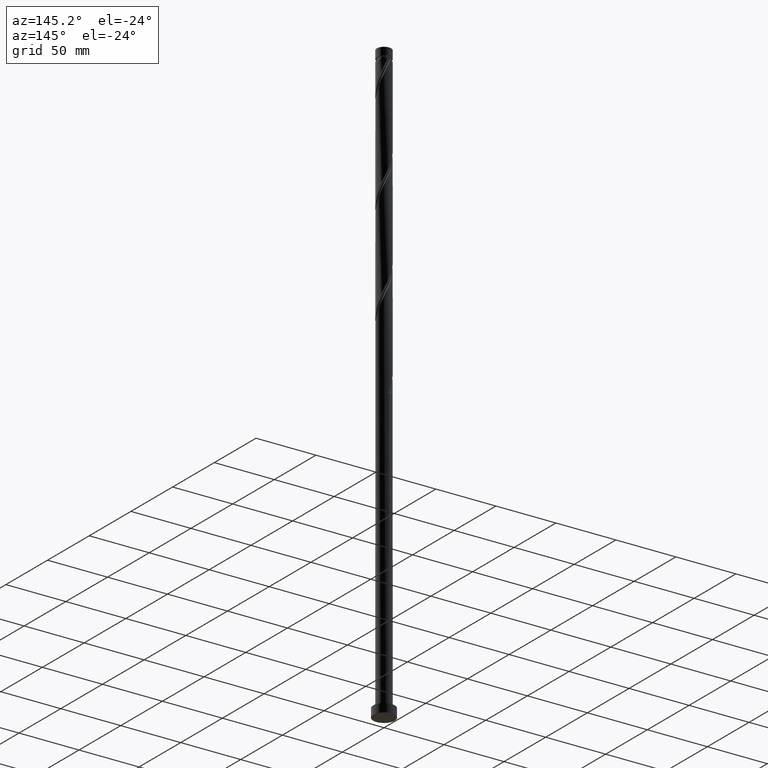
[diagram: clean part render]
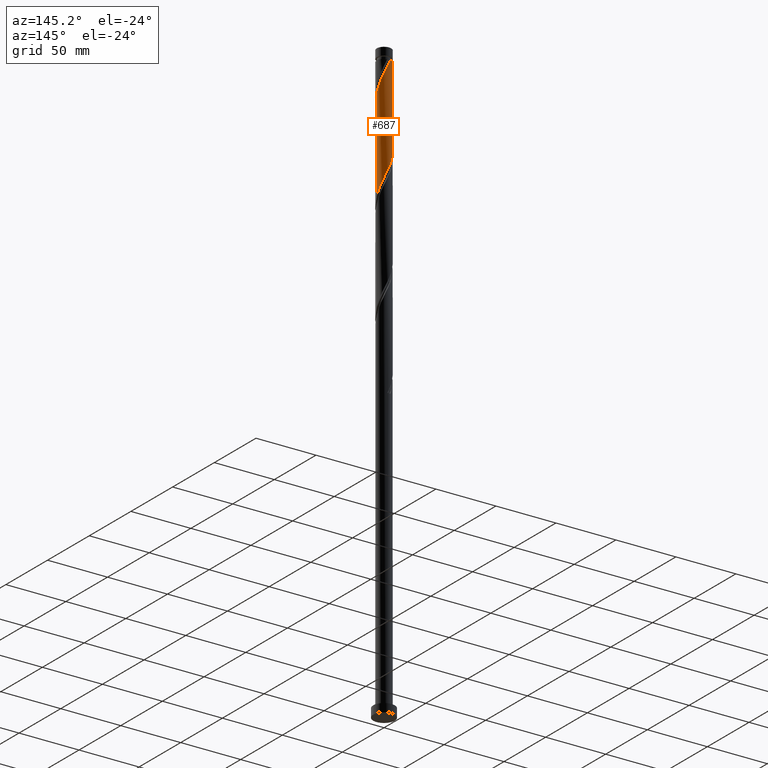
[diagram: same view with one face highlighted and labeled with its STEP entity id]
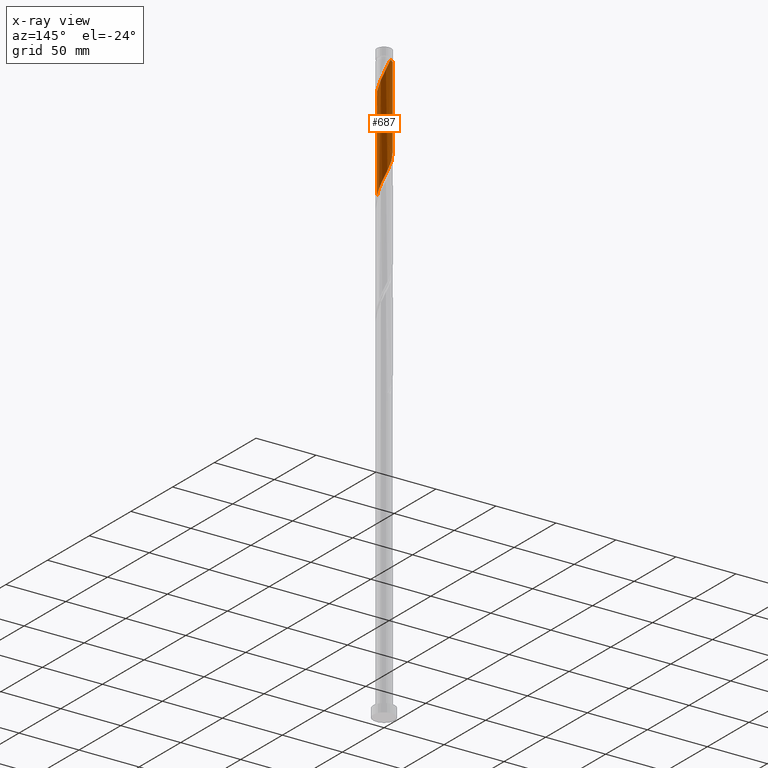
[diagram: x-ray of the same camera — body ghosted, the highlighted face saturated]
A machine part, auxiliary view. The second image highlights one B-rep face of the part: STEP entity #687.
The next image is the same camera in x-ray: the body ghosted, the highlighted face saturated — about 0% of this face is hidden behind the body in this view.
In plain terms, the highlighted cylindrical surface (edge-blend (fillet) strip) has radius 6 mm, axis along (-0, -0, -1).
Its self-contained STEP definition (entity closure, byte-faithful):
#4 = CARTESIAN_POINT ( 'NONE',  ( 5.999999999999996447, 0.5788788895739149787, 390.7129096916172557 ) ) ;
#23 = CARTESIAN_POINT ( 'NONE',  ( 2.273990787862928187, 5.552383803080857660, 483.1342326082042860 ) ) ;
#25 = EDGE_CURVE ( 'NONE', #1206, #496, #877, .T. ) ;
#34 = CARTESIAN_POINT ( 'NONE',  ( 3.313513036608686235, 5.002062710145124491, 480.5300659415375435 ) ) ;
#73 = ORIENTED_EDGE ( 'NONE', *, *, #1419, .F. ) ;
#147 = CARTESIAN_POINT ( 'NONE',  ( 2.318173932455211084, 5.534082545362432271, 405.0092326082041723 ) ) ;
#150 = CARTESIAN_POINT ( 'NONE',  ( -6.000000000000000888, 0.01195592024556735820, 431.0772426983504033 ) ) ;
#179 = CARTESIAN_POINT ( 'NONE',  ( 5.305762341528935444, 2.863233488642343616, 474.0196492748709716 ) ) ;
#203 = CARTESIAN_POINT ( 'NONE',  ( 6.000000000000010658, -2.050212936401257795E-17, 467.4565356302072701 ) ) ;
#213 = CARTESIAN_POINT ( 'NONE',  ( 6.000000000000000888, 7.347880794884120722E-16, 500.0000000000000000 ) ) ;
#259 =( BOUNDED_CURVE ( )  B_SPLINE_CURVE ( 2, ( #203, #664, #972, #497, #352, #341, #1349, #179, #1995, #1485, #530, #1804, #34, #1830, #23, #374, #1137, #1621, #676, #1327, #1970 ),
 .UNSPECIFIED., .F., .T. ) 
 B_SPLINE_CURVE_WITH_KNOTS ( ( 3, 2, 2, 2, 2, 2, 2, 2, 2, 2, 3 ),
 ( 0.6795286902180872612, 0.6796875000000000000, 0.6875000000000000000, 0.6953125000000000000, 0.7031250000000000000, 0.7109375000000000000, 0.7187500000000000000, 0.7265625000000000000, 0.7343750000000000000, 0.7421875000000000000, 0.7500000000000000000 ),
 .UNSPECIFIED. ) 
 CURVE ( )  GEOMETRIC_REPRESENTATION_ITEM ( )  RATIONAL_B_SPLINE_CURVE ( ( 0.9089165573359503369, 0.9090019243628550960, 0.9090909090909468082, 0.9047133878838529153, 0.9090909090909468082, 0.9047133878838529153, 0.9090909090909468082, 0.9047133878838529153, 0.9090909090909468082, 0.9047133878838529153, 0.9090909090909468082, 0.9047133878838529153, 0.9090909090909468082, 0.9047133878838529153, 0.9090909090909468082, 0.9047133878838529153, 0.9090909090909468082, 0.9047133878838529153, 0.9090909090909468082, 0.9047133878838529153, 0.9090909090909468082 ) ) 
 REPRESENTATION_ITEM ( '' )  );
#272 = DIRECTION ( 'NONE',  ( -1.000000000000000000, 0.000000000000000000, 0.000000000000000000 ) ) ;
#296 = CARTESIAN_POINT ( 'NONE',  ( -2.820852860605945533, 5.328415259162966322, 416.7279826082043428 ) ) ;
#306 = CARTESIAN_POINT ( 'NONE',  ( -6.000000000000000888, 0.000000000000000000, 500.0000000000000000 ) ) ;
#321 = CARTESIAN_POINT ( 'NONE',  ( 5.552383803080851443, 2.273990787862920193, 394.5925659415375435 ) ) ;
#324 = CARTESIAN_POINT ( 'NONE',  ( -6.000000000000000888, 3.735115204134683242E-14, 431.1035962528676464 ) ) ;
#341 = CARTESIAN_POINT ( 'NONE',  ( 5.762402749195955742, 1.773114376268073666, 471.4154826082042860 ) ) ;
#352 = CARTESIAN_POINT ( 'NONE',  ( 5.880000000000010552, 1.193984924527949021, 470.1133992748709147 ) ) ;
#357 = CARTESIAN_POINT ( 'NONE',  ( 0.02391174554554039919, 5.999952352179555248, 410.2175659415374867 ) ) ;
#368 = VECTOR ( 'NONE', #863, 1000.000000000000000 ) ;
#374 = CARTESIAN_POINT ( 'NONE',  ( 1.727128715119907287, 5.776352346998741893, 484.4363159415375435 ) ) ;
#405 = CARTESIAN_POINT ( 'NONE',  ( 6.000000000000000000, 5.026749354067486738E-15, 389.4369295862010745 ) ) ;
#491 = CARTESIAN_POINT ( 'NONE',  ( 6.000000000000000000, 5.026749354067486738E-15, 389.4369295862010745 ) ) ;
#496 = VERTEX_POINT ( 'NONE', #1218 ) ;
#497 = CARTESIAN_POINT ( 'NONE',  ( 5.997597250804064473, 0.6148554727878240422, 468.8113159415375435 ) ) ;
#525 = CARTESIAN_POINT ( 'NONE',  ( 4.259515152447596265, 4.225698837597079205, 399.8008992748709147 ) ) ;
#530 = CARTESIAN_POINT ( 'NONE',  ( 4.225698837597090751, 4.259515152447602482, 477.9258992748707442 ) ) ;
#550 = VERTEX_POINT ( 'NONE', #405 ) ;
#596 = CARTESIAN_POINT ( 'NONE',  ( -5.999952352179555248, 0.02391174554554061429, 431.0508992748708579 ) ) ;
#628 = CARTESIAN_POINT ( 'NONE',  ( -1.727128715119901736, 5.776352346998731235, 414.1238159415376572 ) ) ;
#648 = CARTESIAN_POINT ( 'NONE',  ( -5.534082545362432271, 2.318173932455207975, 425.8425659415375435 ) ) ;
#664 = CARTESIAN_POINT ( 'NONE',  ( 6.000000000000009770, 0.01195592024556759760, 467.4828891847245700 ) ) ;
#674 = ORIENTED_EDGE ( 'NONE', *, *, #1565, .F. ) ;
#675 = DIRECTION ( 'NONE',  ( -0.000000000000000000, -0.000000000000000000, -1.000000000000000000 ) ) ;
#676 = CARTESIAN_POINT ( 'NONE',  ( -0.02391174554553645443, 5.999952352179564130, 488.3425659415375435 ) ) ;
#687 = ADVANCED_FACE ( 'NONE', ( #1069 ), #1250, .T. ) ;
#707 = VERTEX_POINT ( 'NONE', #1722 ) ;
#746 = DIRECTION ( 'NONE',  ( -0.000000000000000000, -0.000000000000000000, -1.000000000000000000 ) ) ;
#765 = CARTESIAN_POINT ( 'NONE',  ( 0.000000000000000000, 0.000000000000000000, 500.0000000000000000 ) ) ;
#804 = CARTESIAN_POINT ( 'NONE',  ( -1.147080348408322292, 5.889329900276893959, 412.8217326082041154 ) ) ;
#808 = CARTESIAN_POINT ( 'NONE',  ( -5.997597250804055591, 0.6148554727878231541, 429.7488159415376572 ) ) ;
#816 = CARTESIAN_POINT ( 'NONE',  ( 3.843320143767924968, 4.645224462582748792, 401.1029826082042860 ) ) ;
#824 = CARTESIAN_POINT ( 'NONE',  ( 4.675710161127275555, 3.806173212611407841, 398.4988159415376003 ) ) ;
#841 = ORIENTED_EDGE ( 'NONE', *, *, #965, .F. ) ;
#863 = DIRECTION ( 'NONE',  ( -0.000000000000000000, -0.000000000000000000, -1.000000000000000000 ) ) ;
#877 = CIRCLE ( 'NONE', #1147, 5.999999999999953815 ) ;
#959 = CARTESIAN_POINT ( 'NONE',  ( -6.000000000000000888, 3.735115204134683242E-14, 431.1035962528676464 ) ) ;
#965 = EDGE_CURVE ( 'NONE', #1840, #550, #1714, .T. ) ;
#967 = CARTESIAN_POINT ( 'NONE',  ( 5.328415259162966322, 2.820852860605945978, 395.8946492748708579 ) ) ;
#972 = CARTESIAN_POINT ( 'NONE',  ( 5.999952352179564130, 0.02391174554553667300, 467.5092326082041723 ) ) ;
#979 = CARTESIAN_POINT ( 'NONE',  ( 1.773114376268074333, 5.762402749195944196, 406.3113159415374867 ) ) ;
#1006 = AXIS2_PLACEMENT_3D ( 'NONE', #765, #746, #272 ) ;
#1014 = CARTESIAN_POINT ( 'NONE',  ( 0.6148554727878232651, 5.997597250804055591, 408.9154826082041723 ) ) ;
#1069 = FACE_OUTER_BOUND ( 'NONE', #1136, .T. ) ;
#1107 = CARTESIAN_POINT ( 'NONE',  ( -3.313513036608678242, 5.002062710145119162, 418.0300659415376003 ) ) ;
#1136 = EDGE_LOOP ( 'NONE', ( #674, #1280, #841, #73, #1235 ) ) ;
#1137 = CARTESIAN_POINT ( 'NONE',  ( 1.147080348408328954, 5.889329900276901952, 485.7383992748709716 ) ) ;
#1147 = AXIS2_PLACEMENT_3D ( 'NONE', #1605, #1397, #1543 ) ;
#1157 = CARTESIAN_POINT ( 'NONE',  ( 1.193984924527950353, 5.879999999999999005, 407.6133992748708579 ) ) ;
#1198 = LINE ( 'NONE', #213, #368 ) ;
#1206 = VERTEX_POINT ( 'NONE', #1355 ) ;
#1218 = CARTESIAN_POINT ( 'NONE',  ( -1.193984924527948799, 5.880000000000010552, 490.9467326082042291 ) ) ;
#1235 = ORIENTED_EDGE ( 'NONE', *, *, #25, .T. ) ;
#1250 = CYLINDRICAL_SURFACE ( 'NONE', #1006, 6.000000000000000888 ) ;
#1255 = CARTESIAN_POINT ( 'NONE',  ( -4.975493402055837677, 3.353276816205132516, 423.2383992748708579 ) ) ;
#1263 = CARTESIAN_POINT ( 'NONE',  ( -3.806173212611410950, 4.675710161127272002, 419.3321492748708579 ) ) ;
#1280 = ORIENTED_EDGE ( 'NONE', *, *, #1568, .T. ) ;
#1301 = CARTESIAN_POINT ( 'NONE',  ( -5.305762341528927450, 2.863233488642341840, 424.5404826082042860 ) ) ;
#1327 = CARTESIAN_POINT ( 'NONE',  ( -0.6148554727878237092, 5.997597250804064473, 489.6446492748708579 ) ) ;
#1343 = CARTESIAN_POINT ( 'NONE',  ( 2.863233488642342728, 5.305762341528925674, 403.7071492748709147 ) ) ;
#1349 = CARTESIAN_POINT ( 'NONE',  ( 5.534082545362443817, 2.318173932455211972, 472.7175659415374867 ) ) ;
#1355 = CARTESIAN_POINT ( 'NONE',  ( -5.999999999999953815, 0.000000000000000000, 490.9467326082042291 ) ) ;
#1397 = DIRECTION ( 'NONE',  ( -0.000000000000000000, -0.000000000000000000, -1.000000000000000000 ) ) ;
#1419 = EDGE_CURVE ( 'NONE', #1206, #1840, #1599, .T. ) ;
#1485 = CARTESIAN_POINT ( 'NONE',  ( 4.645224462582758562, 3.843320143767928965, 476.6238159415374298 ) ) ;
#1491 = CARTESIAN_POINT ( 'NONE',  ( 5.002062710145120050, 3.313513036608676909, 397.1967326082041723 ) ) ;
#1543 = DIRECTION ( 'NONE',  ( -1.000000000000000000, 0.000000000000000000, 0.000000000000000000 ) ) ;
#1565 = EDGE_CURVE ( 'NONE', #707, #496, #259, .T. ) ;
#1568 = EDGE_CURVE ( 'NONE', #707, #550, #1198, .T. ) ;
#1584 = CARTESIAN_POINT ( 'NONE',  ( -5.762402749195944196, 1.773114376268075443, 427.1446492748709147 ) ) ;
#1599 = LINE ( 'NONE', #306, #1691 ) ;
#1605 = CARTESIAN_POINT ( 'NONE',  ( 0.000000000000000000, 0.000000000000000000, 490.9467326082042291 ) ) ;
#1621 = CARTESIAN_POINT ( 'NONE',  ( 0.5670319816967451798, 6.002307453555064676, 487.0404826082041723 ) ) ;
#1691 = VECTOR ( 'NONE', #675, 1000.000000000000000 ) ;
#1714 =( BOUNDED_CURVE ( )  B_SPLINE_CURVE ( 2, ( #959, #150, #596, #808, #2100, #1584, #648, #1301, #1255, #1893, #1723, #1263, #1107, #296, #1931, #628, #804, #1776, #357, #1014, #1157, #979, #147, #1343, #1989, #816, #525, #824, #1491, #967, #321, #2097, #1822, #4, #491 ),
 .UNSPECIFIED., .F., .T. ) 
 B_SPLINE_CURVE_WITH_KNOTS ( ( 3, 2, 2, 2, 2, 2, 2, 2, 2, 2, 2, 2, 2, 2, 2, 2, 2, 3 ),
 ( 0.4295286902180872057, 0.4296875000000000000, 0.4375000000000000000, 0.4453125000000000000, 0.4531250000000000000, 0.4609375000000000000, 0.4687500000000000000, 0.4765625000000000000, 0.4843750000000000000, 0.4921875000000000000, 0.5000000000000000000, 0.5078125000000000000, 0.5156250000000000000, 0.5234375000000000000, 0.5312500000000000000, 0.5390625000000000000, 0.5468750000000000000, 0.5545286902180868172 ),
 .UNSPECIFIED. ) 
 CURVE ( )  GEOMETRIC_REPRESENTATION_ITEM ( )  RATIONAL_B_SPLINE_CURVE ( ( 0.9089165573359432315, 0.9090019243628479906, 0.9090909090909398138, 0.9047133878838459209, 0.9090909090909398138, 0.9047133878838459209, 0.9090909090909398138, 0.9047133878838459209, 0.9090909090909398138, 0.9047133878838459209, 0.9090909090909398138, 0.9047133878838459209, 0.9090909090909398138, 0.9047133878838459209, 0.9090909090909398138, 0.9047133878838459209, 0.9090909090909398138, 0.9047133878838459209, 0.9090909090909398138, 0.9047133878838459209, 0.9090909090909398138, 0.9047133878838459209, 0.9090909090909398138, 0.9047133878838459209, 0.9090909090909398138, 0.9047133878838459209, 0.9090909090909398138, 0.9047133878838459209, 0.9090909090909398138, 0.9047133878838459209, 0.9090909090909398138, 0.9047133878838459209, 0.9090909090909398138, 0.9048023726119378551, 0.9089165573359428985 ) ) 
 REPRESENTATION_ITEM ( '' )  );
#1722 = CARTESIAN_POINT ( 'NONE',  ( 6.000000000000010658, -2.050212936401257795E-17, 467.4565356302072701 ) ) ;
#1723 = CARTESIAN_POINT ( 'NONE',  ( -4.225698837597079205, 4.259515152447597153, 420.6342326082041723 ) ) ;
#1776 = CARTESIAN_POINT ( 'NONE',  ( -0.5670319816967425153, 6.002307453555054906, 411.5196492748709147 ) ) ;
#1804 = CARTESIAN_POINT ( 'NONE',  ( 3.806173212611418055, 4.675710161127279996, 479.2279826082042291 ) ) ;
#1822 = CARTESIAN_POINT ( 'NONE',  ( 5.889329900276893071, 1.147080348408323847, 391.9883992748708010 ) ) ;
#1830 = CARTESIAN_POINT ( 'NONE',  ( 2.820852860605953083, 5.328415259162973427, 481.8321492748709147 ) ) ;
#1840 = VERTEX_POINT ( 'NONE', #324 ) ;
#1893 = CARTESIAN_POINT ( 'NONE',  ( -4.645224462582749680, 3.843320143767924080, 421.9363159415376003 ) ) ;
#1931 = CARTESIAN_POINT ( 'NONE',  ( -2.273990787862923302, 5.552383803080851443, 415.4258992748708579 ) ) ;
#1970 = CARTESIAN_POINT ( 'NONE',  ( -1.193984924527948799, 5.880000000000010552, 490.9467326082042291 ) ) ;
#1989 = CARTESIAN_POINT ( 'NONE',  ( 3.353276816205134736, 4.975493402055835901, 402.4050659415375435 ) ) ;
#1995 = CARTESIAN_POINT ( 'NONE',  ( 4.975493402055844783, 3.353276816205139177, 475.3217326082041154 ) ) ;
#2097 = CARTESIAN_POINT ( 'NONE',  ( 5.776352346998731235, 1.727128715119901292, 393.2904826082042860 ) ) ;
#2100 = CARTESIAN_POINT ( 'NONE',  ( -5.879999999999999005, 1.193984924527949243, 428.4467326082041154 ) ) ;